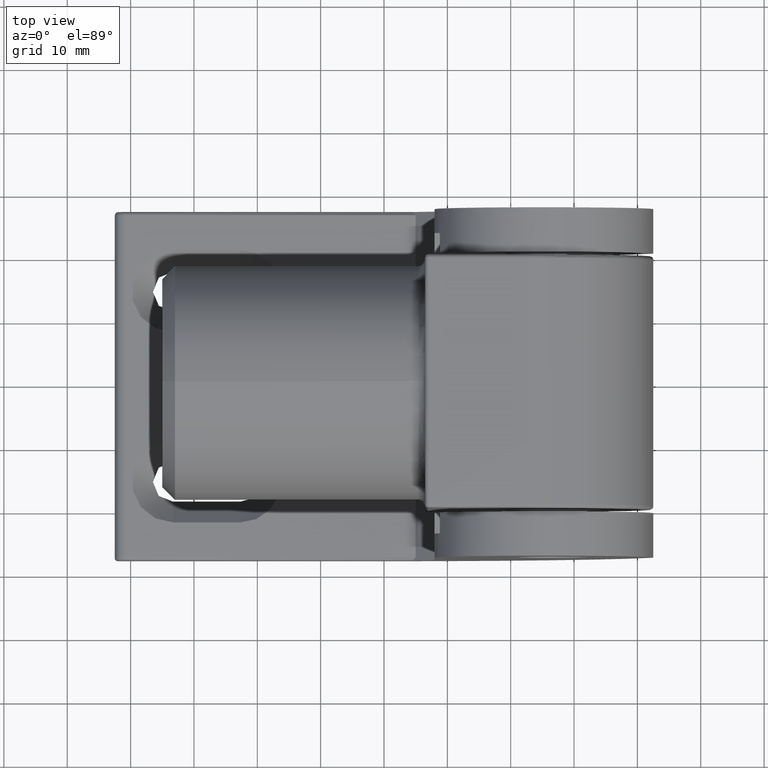
[diagram: clean part render]
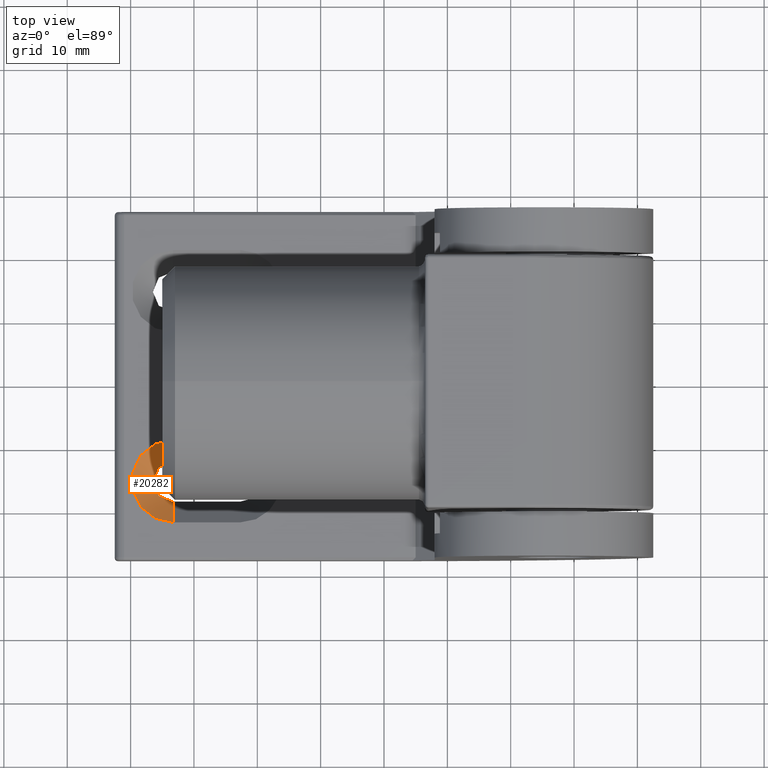
[diagram: same view with one face highlighted and labeled with its STEP entity id]
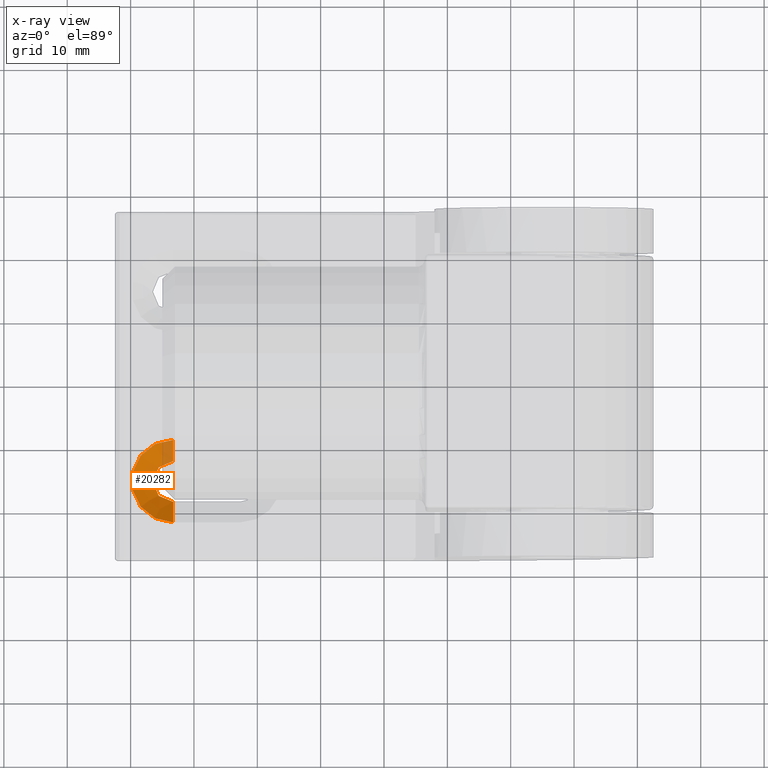
[diagram: x-ray of the same camera — body ghosted, the highlighted face saturated]
A machine part, top view. The second image highlights one B-rep face of the part: STEP entity #20282.
The next image is the same camera in x-ray: the body ghosted, the highlighted face saturated — about 12% of this face is hidden behind the body in this view.
In plain terms, the highlighted conical surface has half-angle 45 deg.
Its self-contained STEP definition (entity closure, byte-faithful):
#1683 = CARTESIAN_POINT ( 'NONE',  ( -33.30000000000001137, -8.500000000000000000, -17.49999999999999645 ) ) ;
#3010 = AXIS2_PLACEMENT_3D ( 'NONE', #16557, #6708, #14668 ) ;
#4289 = EDGE_CURVE ( 'NONE', #25330, #14911, #6580, .T. ) ;
#4604 = EDGE_CURVE ( 'NONE', #20026, #12341, #16683, .T. ) ;
#5282 = CARTESIAN_POINT ( 'NONE',  ( -33.30000000000001137, -18.19999999999999574, -20.80000000000000071 ) ) ;
#6580 = CIRCLE ( 'NONE', #3010, 6.500000000000002665 ) ;
#6708 = DIRECTION ( 'NONE',  ( -0.000000000000000000, -0.000000000000000000, 1.000000000000000000 ) ) ;
#7272 = VECTOR ( 'NONE', #13063, 1000.000000000000000 ) ;
#8544 = AXIS2_PLACEMENT_3D ( 'NONE', #22231, #10473, #10644 ) ;
#8859 = CARTESIAN_POINT ( 'NONE',  ( -33.30000000000000426, -15.00000000000000355, -23.99999999999998579 ) ) ;
#8924 = CARTESIAN_POINT ( 'NONE',  ( -33.30000000000000426, -21.50000000000000355, -17.49999999999999645 ) ) ;
#9167 = DIRECTION ( 'NONE',  ( -0.000000000000000000, -0.7071067811865483499, -0.7071067811865467956 ) ) ;
#9704 = LINE ( 'NONE', #8859, #7272 ) ;
#10473 = DIRECTION ( 'NONE',  ( -0.000000000000000000, -0.000000000000000000, 1.000000000000000000 ) ) ;
#10644 = DIRECTION ( 'NONE',  ( 1.000000000000000000, 0.000000000000000000, 0.000000000000000000 ) ) ;
#12341 = VERTEX_POINT ( 'NONE', #5282 ) ;
#12374 = AXIS2_PLACEMENT_3D ( 'NONE', #19310, #25250, #13497 ) ;
#13063 = DIRECTION ( 'NONE',  ( 0.000000000000000000, -0.7071067811865483499, 0.7071067811865467956 ) ) ;
#13497 = DIRECTION ( 'NONE',  ( 1.000000000000000000, 0.000000000000000000, 0.000000000000000000 ) ) ;
#14283 = CARTESIAN_POINT ( 'NONE',  ( -33.30000000000001137, -11.80000000000000959, -20.80000000000000071 ) ) ;
#14668 = DIRECTION ( 'NONE',  ( 1.000000000000000000, 0.000000000000000000, 0.000000000000000000 ) ) ;
#14911 = VERTEX_POINT ( 'NONE', #8924 ) ;
#15647 = EDGE_LOOP ( 'NONE', ( #24381, #18640, #21397, #15902 ) ) ;
#15778 = EDGE_CURVE ( 'NONE', #12341, #14911, #9704, .T. ) ;
#15902 = ORIENTED_EDGE ( 'NONE', *, *, #21339, .F. ) ;
#16357 = FACE_OUTER_BOUND ( 'NONE', #15647, .T. ) ;
#16557 = CARTESIAN_POINT ( 'NONE',  ( -33.30000000000000426, -15.00000000000000355, -17.49999999999999645 ) ) ;
#16683 = CIRCLE ( 'NONE', #8544, 3.199999999999994404 ) ;
#18640 = ORIENTED_EDGE ( 'NONE', *, *, #15778, .F. ) ;
#18937 = CARTESIAN_POINT ( 'NONE',  ( -33.30000000000000426, -15.00000000000000355, -23.99999999999998579 ) ) ;
#19310 = CARTESIAN_POINT ( 'NONE',  ( -33.30000000000000426, -15.00000000000000355, -17.49999999999999645 ) ) ;
#20026 = VERTEX_POINT ( 'NONE', #14283 ) ;
#20282 = ADVANCED_FACE ( 'NONE', ( #16357 ), #20334, .F. ) ;
#20334 = CONICAL_SURFACE ( 'NONE', #12374, 6.500000000000002665, 0.7853981633974492782 ) ;
#20480 = VECTOR ( 'NONE', #9167, 1000.000000000000000 ) ;
#21339 = EDGE_CURVE ( 'NONE', #25330, #20026, #23249, .T. ) ;
#21397 = ORIENTED_EDGE ( 'NONE', *, *, #4604, .F. ) ;
#22231 = CARTESIAN_POINT ( 'NONE',  ( -33.30000000000000426, -15.00000000000000355, -20.80000000000000071 ) ) ;
#23249 = LINE ( 'NONE', #18937, #20480 ) ;
#24381 = ORIENTED_EDGE ( 'NONE', *, *, #4289, .T. ) ;
#25250 = DIRECTION ( 'NONE',  ( -0.000000000000000000, -0.000000000000000000, 1.000000000000000000 ) ) ;
#25330 = VERTEX_POINT ( 'NONE', #1683 ) ;